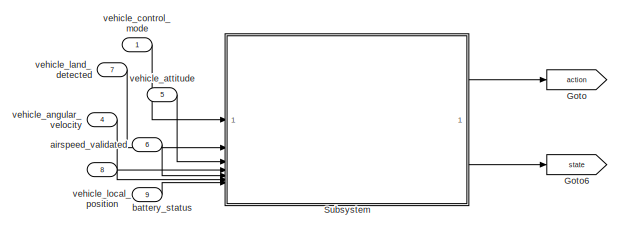
[diagram: root canvas - part 1/2, top center region]
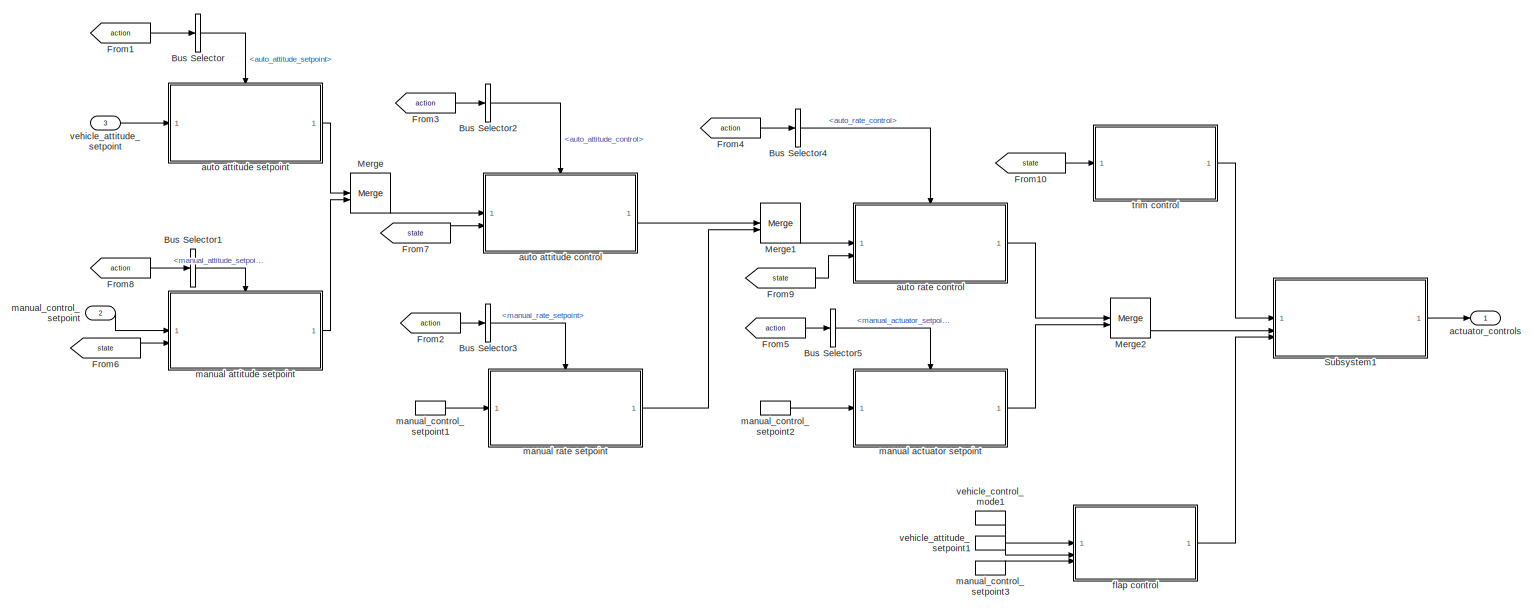
[diagram: root canvas - part 2/2, full width, middle band]
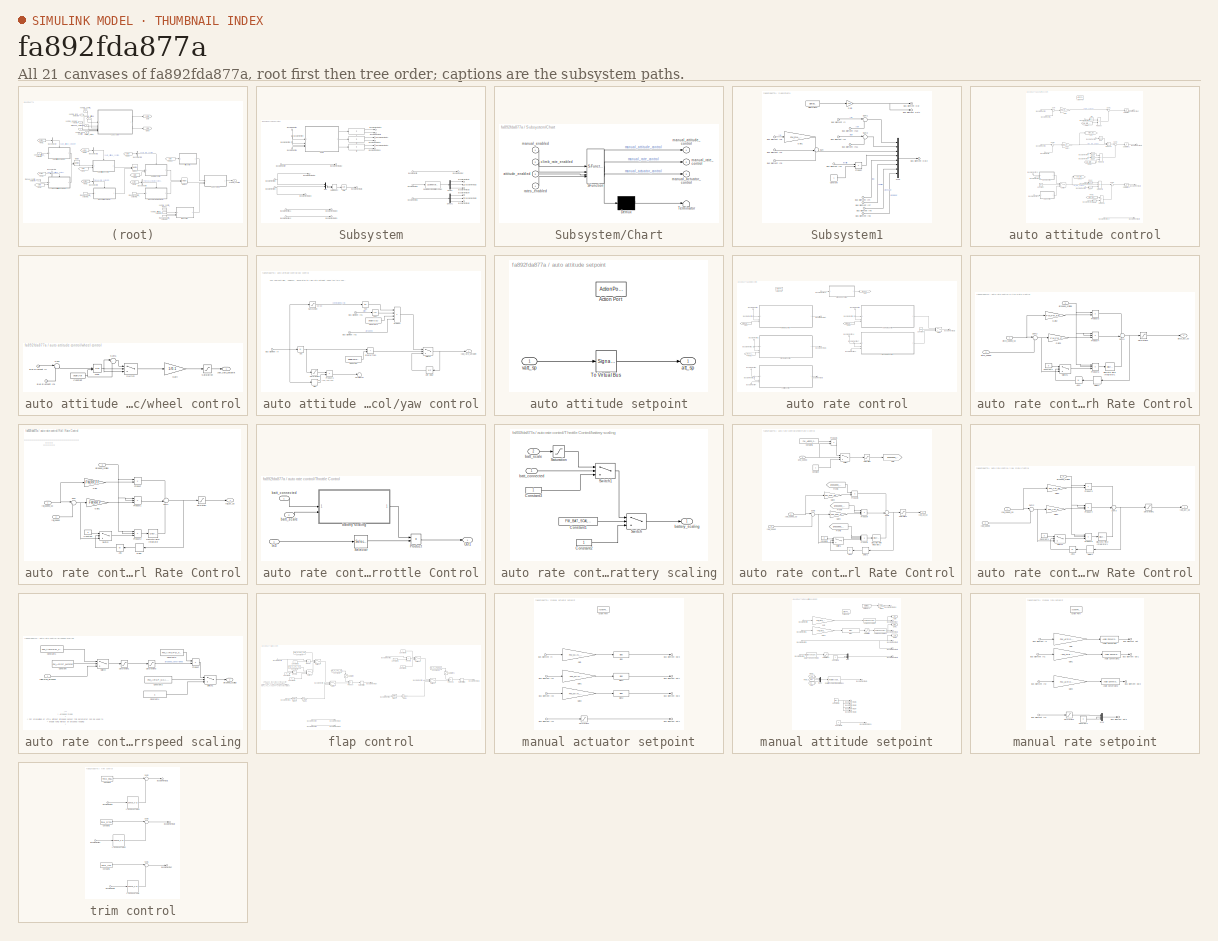
[diagram: thumbnail index - all 21 canvases of the model, root first then tree order]
MODEL slx_fa892fda877a
KIND model
CONFIG AbsTol = auto
CONFIG EnableMultiTasking = off
CONFIG FixedStep = 0.005
CONFIG MaxStep = auto
CONFIG MinStep = auto
CONFIG RelTol = 1e-3
CONFIG SampleTimeConstraint = Unconstrained
CONFIG SolverName = FixedStepAuto
CONFIG StartTime = 0.0
CONFIG StopTime = 10.0
BLOCK [BusSelector] Bus Selector
  OutputSignals = auto_attitude_setpoint
BLOCK [BusSelector] Bus Selector1
  OutputSignals = manual_attitude_setpoint
BLOCK [BusSelector] Bus Selector2
  OutputSignals = auto_attitude_control
BLOCK [BusSelector] Bus Selector3
  OutputSignals = manual_rate_setpoint
BLOCK [BusSelector] Bus Selector4
  OutputSignals = auto_rate_control
BLOCK [BusSelector] Bus Selector5
  OutputSignals = manual_actuator_setpoint
BLOCK [From] From1
  GotoTag = action
BLOCK [From] From10
  GotoTag = state
BLOCK [From] From2
  GotoTag = action
BLOCK [From] From3
  GotoTag = action
BLOCK [From] From4
  GotoTag = action
BLOCK [From] From5
  GotoTag = action
BLOCK [From] From6
  GotoTag = state
BLOCK [From] From7
  GotoTag = state
BLOCK [From] From8
  GotoTag = action
BLOCK [From] From9
  GotoTag = state
BLOCK [Goto] Goto
  GotoTag = action
BLOCK [Goto] Goto6
  GotoTag = state
BLOCK [Merge] Merge
BLOCK [Merge] Merge1
BLOCK [Merge] Merge2
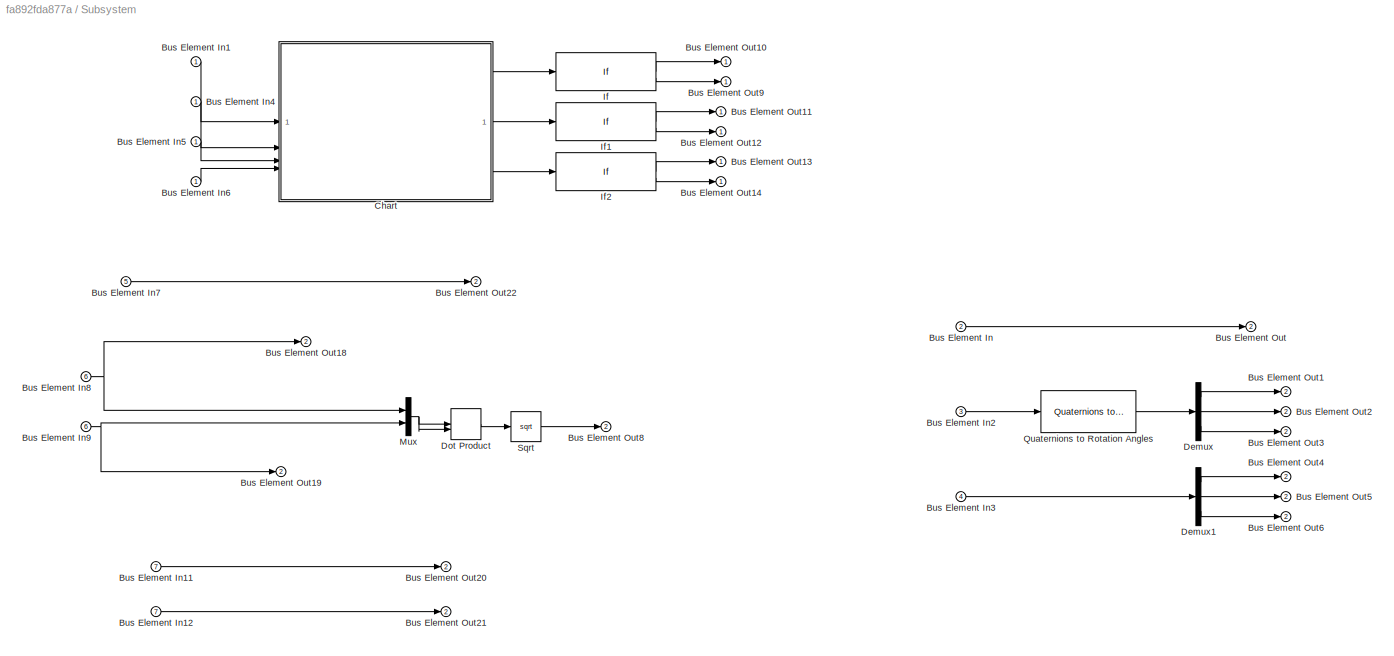
BLOCK [SubSystem] Subsystem
BLOCK [Inport] Subsystem/Bus Element In
  Port = 2
BLOCK [Inport] Subsystem/Bus Element In1
BLOCK [Inport] Subsystem/Bus Element In11
  Port = 7
BLOCK [Inport] Subsystem/Bus Element In12
  Port = 7
BLOCK [Inport] Subsystem/Bus Element In2
  Port = 3
BLOCK [Inport] Subsystem/Bus Element In3
  Port = 4
BLOCK [Inport] Subsystem/Bus Element In4
BLOCK [Inport] Subsystem/Bus Element In5
BLOCK [Inport] Subsystem/Bus Element In6
BLOCK [Inport] Subsystem/Bus Element In7
  Port = 5
BLOCK [Inport] Subsystem/Bus Element In8
  Port = 6
BLOCK [Inport] Subsystem/Bus Element In9
  Port = 6
BLOCK [Outport] Subsystem/Bus Element Out
  Port = 2
BLOCK [Outport] Subsystem/Bus Element Out1
  Port = 2
BLOCK [Outport] Subsystem/Bus Element Out10
BLOCK [Outport] Subsystem/Bus Element Out11
BLOCK [Outport] Subsystem/Bus Element Out12
BLOCK [Outport] Subsystem/Bus Element Out13
BLOCK [Outport] Subsystem/Bus Element Out14
BLOCK [Outport] Subsystem/Bus Element Out18
  Port = 2
BLOCK [Outport] Subsystem/Bus Element Out19
  Port = 2
BLOCK [Outport] Subsystem/Bus Element Out2
  Port = 2
BLOCK [Outport] Subsystem/Bus Element Out20
  Port = 2
BLOCK [Outport] Subsystem/Bus Element Out21
  Port = 2
BLOCK [Outport] Subsystem/Bus Element Out22
  Port = 2
BLOCK [Outport] Subsystem/Bus Element Out3
  Port = 2
BLOCK [Outport] Subsystem/Bus Element Out4
  Port = 2
BLOCK [Outport] Subsystem/Bus Element Out5
  Port = 2
BLOCK [Outport] Subsystem/Bus Element Out6
  Port = 2
BLOCK [Outport] Subsystem/Bus Element Out8
  Port = 2
BLOCK [Outport] Subsystem/Bus Element Out9
BLOCK [SubSystem] Subsystem/Chart
  ErrorFcn = Stateflow.Translate.translate
  PermitHierarchicalResolution = ExplicitOnly
  SFBlockType = Chart
  TreatAsAtomicUnit = on
BLOCK [Demux] Subsystem/Chart/ Demux 
  Outputs = 1
BLOCK [S-Function] Subsystem/Chart/ SFunction 
  EnableBusSupport = on
  FunctionName = sf_sfun
  PortCounts = [4 4]
  SFcnIsStateOwnerBlock = off
  SFunctionDeploymentMode = off
  Tag = Stateflow S-Function 3
BLOCK [Terminator] Subsystem/Chart/ Terminator 
BLOCK [Inport] Subsystem/Chart/attitude_enabled
  Port = 3
BLOCK [Inport] Subsystem/Chart/climb_rate_enabled
  Port = 2
BLOCK [Outport] Subsystem/Chart/manual_actuator_control
  Port = 3
BLOCK [Outport] Subsystem/Chart/manual_attitude_control
BLOCK [Inport] Subsystem/Chart/manual_enabled
BLOCK [Outport] Subsystem/Chart/manual_rate_control
  Port = 2
BLOCK [Inport] Subsystem/Chart/rates_enabled
  Port = 4
BLOCK [Demux] Subsystem/Demux
  Outputs = 3
BLOCK [Demux] Subsystem/Demux1
  Outputs = 3
BLOCK [DotProduct] Subsystem/Dot Product
  OutDataTypeStr = Inherit: Inherit via internal rule
BLOCK [If] Subsystem/If
  IfExpression = u1 > 0.5
BLOCK [If] Subsystem/If1
  IfExpression = u1 > 0.5
BLOCK [If] Subsystem/If2
  IfExpression = u1 > 0.5
BLOCK [Mux] Subsystem/Mux
  DisplayOption = bar
  Inputs = 2
BLOCK [Reference] Subsystem/Quaternions to Rotation Angles  REF=sharedtransform/Quaternions to Rotation Angles
  AttributesFormatString = Rotation Order: %<rotationOrder>
  LibrarySourceBlock = aerolibtransform2/Quaternions to Rotation Angles
  SourceBlock = sharedtransform/Quaternions to Rotation Angles
  SourceType = Quat2Ang
BLOCK [Sqrt] Subsystem/Sqrt
BLOCK [SubSystem] Subsystem1
BLOCK [Inport] Subsystem1/Bus Element In
  Port = 2
BLOCK [Inport] Subsystem1/Bus Element In1
  Port = 2
BLOCK [Inport] Subsystem1/Bus Element In10
BLOCK [Inport] Subsystem1/Bus Element In11
BLOCK [Inport] Subsystem1/Bus Element In2
  Port = 2
BLOCK [Inport] Subsystem1/Bus Element In3
  Port = 2
BLOCK [Inport] Subsystem1/Bus Element In4
  Port = 3
BLOCK [Inport] Subsystem1/Bus Element In5
  Port = 3
BLOCK [Inport] Subsystem1/Bus Element In6
  Port = 2
BLOCK [Inport] Subsystem1/Bus Element In7
  Port = 3
BLOCK [Inport] Subsystem1/Bus Element In8
  Port = 3
BLOCK [Inport] Subsystem1/Bus Element In9
BLOCK [Outport] Subsystem1/Bus Element Out
BLOCK [Outport] Subsystem1/Bus Element Out1
BLOCK [Outport] Subsystem1/Bus Element Out2
BLOCK [Constant] Subsystem1/Constant
  OutDataTypeStr = single
BLOCK [DigitalClock] Subsystem1/Digital Clock
  SampleTime = -1
BLOCK [Gain] Subsystem1/Gain
  Gain = 1e6
  OutDataTypeStr = uint64
BLOCK [Gain] Subsystem1/Gain1
  Gain = FW_RLL_TO_YAW_FF
  OutDataTypeStr = uint64
BLOCK [Mux] Subsystem1/Mux
  DisplayOption = bar
  Inputs = 8
BLOCK [Product] Subsystem1/Product
BLOCK [Sum] Subsystem1/Sum
  Inputs = 3
BLOCK [Sum] Subsystem1/Sum1
  Inputs = |++
BLOCK [Sum] Subsystem1/Sum2
  Inputs = |++
BLOCK [Outport] actuator_controls
  OutDataTypeStr = Bus: actuator_controls_s
BLOCK [Inport] airspeed_validated
  NameLocation = left
  OutDataTypeStr = Bus: airspeed_validated_s
  Port = 6
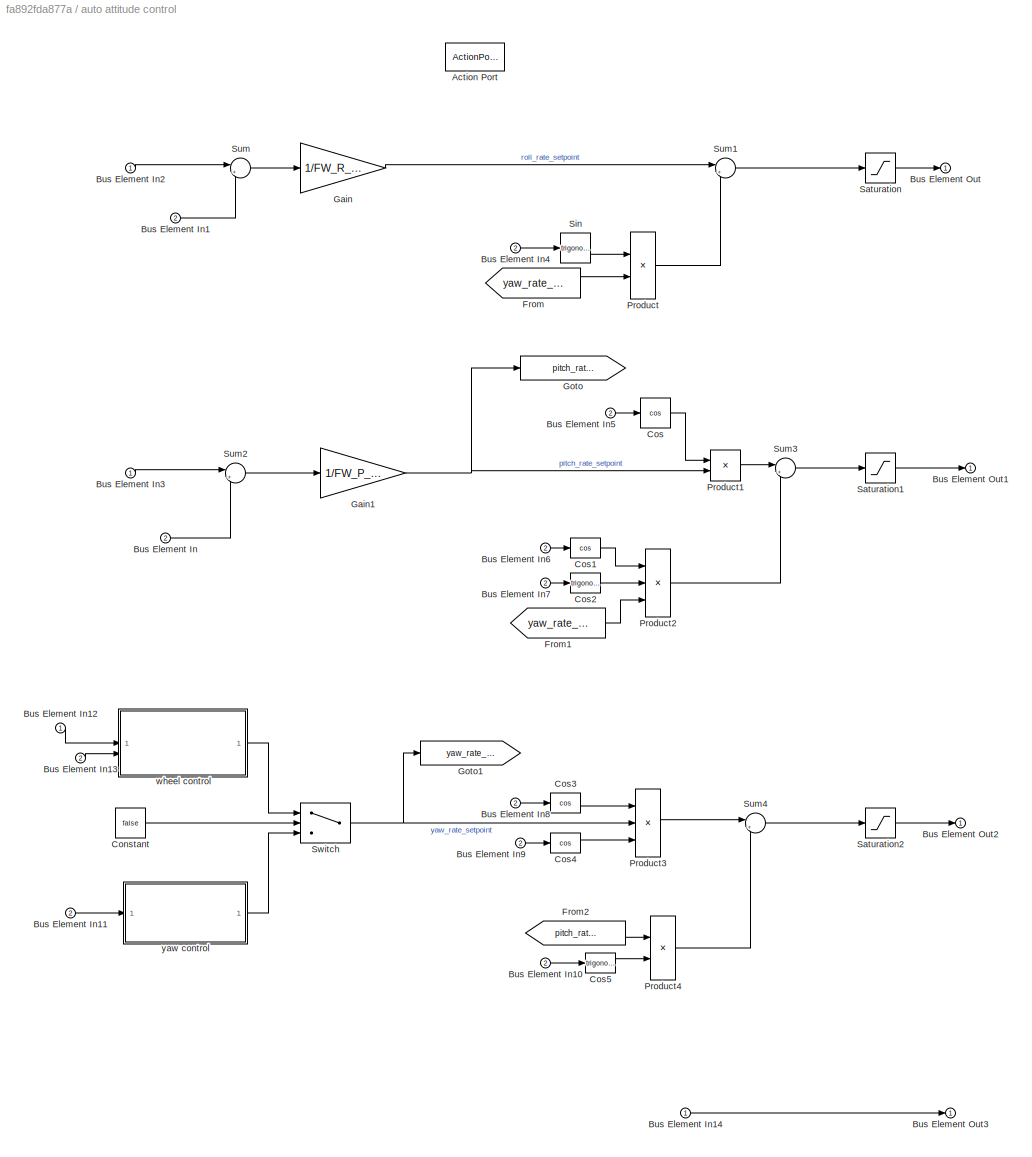
BLOCK [SubSystem] auto attitude control
BLOCK [ActionPort] auto attitude control/Action Port
  ActionPortLabel = else
BLOCK [Inport] auto attitude control/Bus Element In
  Port = 2
BLOCK [Inport] auto attitude control/Bus Element In1
  Port = 2
BLOCK [Inport] auto attitude control/Bus Element In10
  Port = 2
BLOCK [Inport] auto attitude control/Bus Element In11
  Port = 2
BLOCK [Inport] auto attitude control/Bus Element In12
BLOCK [Inport] auto attitude control/Bus Element In13
  Port = 2
BLOCK [Inport] auto attitude control/Bus Element In14
BLOCK [Inport] auto attitude control/Bus Element In2
BLOCK [Inport] auto attitude control/Bus Element In3
BLOCK [Inport] auto attitude control/Bus Element In4
  Port = 2
BLOCK [Inport] auto attitude control/Bus Element In5
  Port = 2
BLOCK [Inport] auto attitude control/Bus Element In6
  Port = 2
BLOCK [Inport] auto attitude control/Bus Element In7
  Port = 2
BLOCK [Inport] auto attitude control/Bus Element In8
  Port = 2
BLOCK [Inport] auto attitude control/Bus Element In9
  Port = 2
BLOCK [Outport] auto attitude control/Bus Element Out
BLOCK [Outport] auto attitude control/Bus Element Out1
BLOCK [Outport] auto attitude control/Bus Element Out2
BLOCK [Outport] auto attitude control/Bus Element Out3
BLOCK [Constant] auto attitude control/Constant
  Value = false
BLOCK [Trigonometry] auto attitude control/Cos
  Operator = cos
BLOCK [Trigonometry] auto attitude control/Cos1
  Operator = cos
BLOCK [Trigonometry] auto attitude control/Cos2
BLOCK [Trigonometry] auto attitude control/Cos3
  Operator = cos
BLOCK [Trigonometry] auto attitude control/Cos4
  Operator = cos
BLOCK [Trigonometry] auto attitude control/Cos5
BLOCK [From] auto attitude control/From
  GotoTag = yaw_rate_setpoint
BLOCK [From] auto attitude control/From1
  GotoTag = yaw_rate_setpoint
BLOCK [From] auto attitude control/From2
  GotoTag = pitch_rate_setpoint
BLOCK [Gain] auto attitude control/Gain
  Gain = 1/FW_R_TC
BLOCK [Gain] auto attitude control/Gain1
  Gain = 1/FW_P_TC
BLOCK [Goto] auto attitude control/Goto
  GotoTag = pitch_rate_setpoint
BLOCK [Goto] auto attitude control/Goto1
  GotoTag = yaw_rate_setpoint
BLOCK [Product] auto attitude control/Product
BLOCK [Product] auto attitude control/Product1
BLOCK [Product] auto attitude control/Product2
  Inputs = 3
BLOCK [Product] auto attitude control/Product3
  Inputs = 3
BLOCK [Product] auto attitude control/Product4
BLOCK [Saturate] auto attitude control/Saturation
  LowerLimit = -FW_R_RMAX
  UpperLimit = FW_R_RMAX
BLOCK [Saturate] auto attitude control/Saturation1
  LowerLimit = -FW_P_RMAX_NEG
  UpperLimit = FW_P_RMAX_POS
BLOCK [Saturate] auto attitude control/Saturation2
  LowerLimit = -FW_Y_RMAX
  UpperLimit = FW_Y_RMAX
BLOCK [Trigonometry] auto attitude control/Sin
BLOCK [Sum] auto attitude control/Sum
  Inputs = |+-
BLOCK [Sum] auto attitude control/Sum1
  Inputs = |+-
BLOCK [Sum] auto attitude control/Sum2
  Inputs = |+-
BLOCK [Sum] auto attitude control/Sum3
  Inputs = |++
BLOCK [Sum] auto attitude control/Sum4
  Inputs = |+-
BLOCK [Switch] auto attitude control/Switch
  Criteria = u2 > Threshold
  InputSameDT = off
  SaturateOnIntegerOverflow = off
BLOCK [SubSystem] auto attitude control/wheel control
BLOCK [Inport] auto attitude control/wheel control/Bus Element In
BLOCK [Inport] auto attitude control/wheel control/Bus Element In1
  Port = 2
BLOCK [Constant] auto attitude control/wheel control/Constant
  OutDataTypeStr = single
  Value = single(2*pi)
BLOCK [Gain] auto attitude control/wheel control/Gain
  Gain = 1/0.1
BLOCK [Math] auto attitude control/wheel control/Mod
  Operator = mod
BLOCK [Saturate] auto attitude control/wheel control/Saturation
  LowerLimit = -FW_W_RMAX
  UpperLimit = FW_W_RMAX
BLOCK [Sum] auto attitude control/wheel control/Sum
  Inputs = |+-
BLOCK [Sum] auto attitude control/wheel control/Sum1
  Inputs = |+-
BLOCK [Switch] auto attitude control/wheel control/Switch
  Criteria = u2 > Threshold
  InputSameDT = off
  SaturateOnIntegerOverflow = off
  Threshold = single(pi)
BLOCK [Outport] auto attitude control/wheel control/yaw_rate_setpoint
BLOCK [SubSystem] auto attitude control/yaw control
BLOCK [Abs] auto attitude control/yaw control/Abs
  SaturateOnIntegerOverflow = off
BLOCK [Inport] auto attitude control/yaw control/Bus Element In
BLOCK [Inport] auto attitude control/yaw control/Bus Element In1
BLOCK [Inport] auto attitude control/yaw control/Bus Element In2
BLOCK [Constant] auto attitude control/yaw control/Constant
  OutDataTypeStr = single
  Value = single(90*pi/180)
BLOCK [Constant] auto attitude control/yaw control/Constant1
  OutDataTypeStr = single
  Value = single(9.81)
BLOCK [RelationalOperator] auto attitude control/yaw control/GreaterThan
  InputSameDT = off
  Operator = <
  OutDataTypeStr = boolean
  RndMeth = Simplest
BLOCK [Product] auto attitude control/yaw control/Product
  Inputs = ***/
BLOCK [Product] auto attitude control/yaw control/Product1
BLOCK [Saturate] auto attitude control/yaw control/Saturation
  LowerLimit = single(-80*pi/180)
  UpperLimit = single(80*pi/180)
BLOCK [Saturate] auto attitude control/yaw control/Saturation1
  LowerLimit = single(100*pi/180)
  UpperLimit = single(180*pi/180)
BLOCK [Signum] auto attitude control/yaw control/Sign
BLOCK [Switch] auto attitude control/yaw control/Switch
  Criteria = u2 > Threshold
  InputSameDT = off
  SaturateOnIntegerOverflow = off
BLOCK [Trigonometry] auto attitude control/yaw control/Tan
  Operator = tan
BLOCK [Trigonometry] auto attitude control/yaw control/Tan1
  Operator = cos
BLOCK [Terminator] auto attitude control/yaw control/Terminator
BLOCK [UnitDelay] auto attitude control/yaw control/Unit Delay
  HasFrameUpgradeWarning = on
  NameLocation = top
  SampleTime = -1
BLOCK [Outport] auto attitude control/yaw control/yaw_rate_setpoint
BLOCK [SubSystem] auto attitude setpoint
BLOCK [ActionPort] auto attitude setpoint/Action Port
  ActionPortLabel = else
BLOCK [SignalConversion] auto attitude setpoint/To Virtual Bus
  Commented = through
  ConversionOutput = Virtual bus
  OverrideOpt = off
BLOCK [Outport] auto attitude setpoint/att_sp
BLOCK [Inport] auto attitude setpoint/vatt_sp
BLOCK [SubSystem] auto rate control
BLOCK [ActionPort] auto rate control/Action Port
  ActionPortLabel = else
BLOCK [Outport] auto rate control/Bus Element Out
BLOCK [Outport] auto rate control/Bus Element Out1
BLOCK [Outport] auto rate control/Bus Element Out2
BLOCK [Outport] auto rate control/Bus Element Out3
BLOCK [Inport] auto rate control/BusElementIn
  Port = 2
BLOCK [Inport] auto rate control/BusElementIn1
BLOCK [Inport] auto rate control/BusElementIn14
  Port = 2
BLOCK [Inport] auto rate control/BusElementIn15
  Port = 2
BLOCK [Inport] auto rate control/BusElementIn16
BLOCK [Inport] auto rate control/BusElementIn17
  Port = 2
BLOCK [Inport] auto rate control/BusElementIn18
  Port = 2
BLOCK [Inport] auto rate control/BusElementIn2
BLOCK [Inport] auto rate control/BusElementIn3
  Port = 2
BLOCK [Inport] auto rate control/BusElementIn4
BLOCK [Inport] auto rate control/BusElementIn5
BLOCK [Inport] auto rate control/BusElementIn6
  Port = 2
BLOCK [Inport] auto rate control/BusElementIn9
  Port = 2
BLOCK [Constant] auto rate control/Constant
  Value = false
BLOCK [From] auto rate control/From
  GotoTag = airspeed_scaling
BLOCK [From] auto rate control/From1
  GotoTag = airspeed_scaling
BLOCK [From] auto rate control/From2
  GotoTag = airspeed_scaling
BLOCK [Goto] auto rate control/Goto
  GotoTag = airspeed_scaling
BLOCK [SubSystem] auto rate control/Pitch Rate Control
BLOCK [Abs] auto rate control/Pitch Rate Control/Abs1
  SaturateOnIntegerOverflow = off
BLOCK [Constant] auto rate control/Pitch Rate Control/Constant1
  OutDataTypeStr = single
  Value = 0
BLOCK [Delay] auto rate control/Pitch Rate Control/Delay1
  DelayLength = 1
  InputPortMap = u0
BLOCK [DiscreteIntegrator] auto rate control/Pitch Rate Control/Discrete-Time Integrator1
  ICPrevOutput = DiscIntNeverNeededParam
  ICPrevScaledInput = DiscIntNeverNeededParam
  InitialConditionSetting = Auto
  LimitOutput = on
  LowerSaturationLimit = -FW_PR_IMAX
  SampleTime = -1
  UpperSaturationLimit = FW_PR_IMAX
  gainval = FW_PR_I
BLOCK [Gain] auto rate control/Pitch Rate Control/Gain2
  Gain = FW_PR_FF
BLOCK [Gain] auto rate control/Pitch Rate Control/Gain3
  Gain = FW_PR_P
BLOCK [Product] auto rate control/Pitch Rate Control/Product3
BLOCK [Product] auto rate control/Pitch Rate Control/Product4
  Inputs = 3
BLOCK [Product] auto rate control/Pitch Rate Control/Product5
  Inputs = 3
BLOCK [Saturate] auto rate control/Pitch Rate Control/Saturation1
  LowerLimit = -1
  UpperLimit = 1
BLOCK [Sum] auto rate control/Pitch Rate Control/Sum2
  Inputs = |+-
BLOCK [Sum] auto rate control/Pitch Rate Control/Sum3
  Inputs = 3
BLOCK [Switch] auto rate control/Pitch Rate Control/Switch1
  Criteria = u2 > Threshold
  InputSameDT = off
  SaturateOnIntegerOverflow = off
  Threshold = 1
BLOCK [Inport] auto rate control/Pitch Rate Control/airspeed_scaling
  Port = 3
BLOCK [Outport] auto rate control/Pitch Rate Control/pitch_act_sp
BLOCK [Inport] auto rate control/Pitch Rate Control/pitch_speed
  Port = 2
BLOCK [Inport] auto rate control/Pitch Rate Control/pitch_speed_sp
BLOCK [SubSystem] auto rate control/Roll Rate Control
BLOCK [Abs] auto rate control/Roll Rate Control/Abs
  SaturateOnIntegerOverflow = off
BLOCK [Constant] auto rate control/Roll Rate Control/Constant
  OutDataTypeStr = single
  Value = 0
BLOCK [Delay] auto rate control/Roll Rate Control/Delay
  DelayLength = 1
  InputPortMap = u0
BLOCK [DiscreteIntegrator] auto rate control/Roll Rate Control/Discrete-Time Integrator
  ICPrevOutput = DiscIntNeverNeededParam
  ICPrevScaledInput = DiscIntNeverNeededParam
  InitialConditionSetting = Auto
  LimitOutput = on
  LowerSaturationLimit = -FW_RR_IMAX
  SampleTime = -1
  UpperSaturationLimit = FW_RR_IMAX
  gainval = FW_RR_I
BLOCK [Gain] auto rate control/Roll Rate Control/Gain
  Gain = FW_RR_FF
BLOCK [Gain] auto rate control/Roll Rate Control/Gain1
  Gain = FW_RR_P
BLOCK [Product] auto rate control/Roll Rate Control/Product
BLOCK [Product] auto rate control/Roll Rate Control/Product1
  Inputs = 3
BLOCK [Product] auto rate control/Roll Rate Control/Product2
  Inputs = 3
BLOCK [Saturate] auto rate control/Roll Rate Control/Saturation
  LowerLimit = -1
  UpperLimit = 1
BLOCK [Sum] auto rate control/Roll Rate Control/Sum
  Inputs = |+-
BLOCK [Sum] auto rate control/Roll Rate Control/Sum1
  Inputs = 3
BLOCK [Switch] auto rate control/Roll Rate Control/Switch
  Criteria = u2 > Threshold
  InputSameDT = off
  SaturateOnIntegerOverflow = off
  Threshold = 1
BLOCK [Inport] auto rate control/Roll Rate Control/airspeed_scaling
  Port = 3
BLOCK [Outport] auto rate control/Roll Rate Control/roll_act_sp
BLOCK [Inport] auto rate control/Roll Rate Control/roll_speed
  Port = 2
BLOCK [Inport] auto rate control/Roll Rate Control/roll_speed_sp
BLOCK [Switch] auto rate control/Switch
  Criteria = u2 > Threshold
  InputSameDT = off
  SaturateOnIntegerOverflow = off
BLOCK [SubSystem] auto rate control/Throttle Control
BLOCK [Inport] auto rate control/Throttle Control/In3
  Port = 3
BLOCK [Outport] auto rate control/Throttle Control/Out1
BLOCK [Product] auto rate control/Throttle Control/Product
BLOCK [Selector] auto rate control/Throttle Control/Selector
  IndexOptions = Index vector (dialog)
  Indices = 1
  InputPortWidth = 3
  OutputSizes = 1
BLOCK [Inport] auto rate control/Throttle Control/batt_connected
BLOCK [Inport] auto rate control/Throttle Control/batt_scale
  Port = 2
BLOCK [SubSystem] auto rate control/Throttle Control/battery scaling
BLOCK [Constant] auto rate control/Throttle Control/battery scaling/Constant1
  Value = FW_BAT_SCALE_EN
BLOCK [Constant] auto rate control/Throttle Control/battery scaling/Constant2
  OutDataTypeStr = single
BLOCK [Constant] auto rate control/Throttle Control/battery scaling/Constant3
  OutDataTypeStr = single
BLOCK [Saturate] auto rate control/Throttle Control/battery scaling/Saturation
  LowerLimit = 0
  UpperLimit = inf
BLOCK [Switch] auto rate control/Throttle Control/battery scaling/Switch
  Criteria = u2 > Threshold
  InputSameDT = off
  SaturateOnIntegerOverflow = off
BLOCK [Switch] auto rate control/Throttle Control/battery scaling/Switch1
  Criteria = u2 > Threshold
  InputSameDT = off
  SaturateOnIntegerOverflow = off
  Threshold = 0.5
BLOCK [Inport] auto rate control/Throttle Control/battery scaling/batt_connected
BLOCK [Inport] auto rate control/Throttle Control/battery scaling/batt_scale
  Port = 2
BLOCK [Outport] auto rate control/Throttle Control/battery scaling/battery_scaling
BLOCK [SubSystem] auto rate control/Wheel Rate Control
BLOCK [Abs] auto rate control/Wheel Rate Control/Abs1
  SaturateOnIntegerOverflow = off
BLOCK [Constant] auto rate control/Wheel Rate Control/Constant
  OutDataTypeStr = single
BLOCK [Constant] auto rate control/Wheel Rate Control/Constant1
  OutDataTypeStr = single
  Value = 0
BLOCK [Constant] auto rate control/Wheel Rate Control/Constant5
  Value = FW_AIRSPD_STALL
BLOCK [Delay] auto rate control/Wheel Rate Control/Delay1
  DelayLength = 1
  InputPortMap = u0
BLOCK [DiscreteIntegrator] auto rate control/Wheel Rate Control/Discrete-Time Integrator1
  ICPrevOutput = DiscIntNeverNeededParam
  ICPrevScaledInput = DiscIntNeverNeededParam
  InitialConditionSetting = Auto
  LimitOutput = on
  LowerSaturationLimit = -FW_WR_IMAX
  SampleTime = -1
  UpperSaturationLimit = FW_WR_IMAX
  gainval = FW_WR_I
BLOCK [From] auto rate control/Wheel Rate Control/From3
  GotoTag = gndspeed_scaling
BLOCK [From] auto rate control/Wheel Rate Control/From4
  GotoTag = gndspeed_scaling
BLOCK [From] auto rate control/Wheel Rate Control/From5
  GotoTag = gndspeed_scaling
BLOCK [Gain] auto rate control/Wheel Rate Control/Gain2
  Gain = FW_WR_FF
BLOCK [Gain] auto rate control/Wheel Rate Control/Gain3
  Gain = FW_WR_P
BLOCK [Goto] auto rate control/Wheel Rate Control/Goto
  GotoTag = gndspeed_scaling
BLOCK [Product] auto rate control/Wheel Rate Control/Product1
  Inputs = */
BLOCK [Product] auto rate control/Wheel Rate Control/Product3
BLOCK [Product] auto rate control/Wheel Rate Control/Product4
  Inputs = 3
BLOCK [Product] auto rate control/Wheel Rate Control/Product5
  Inputs = 4
BLOCK [Saturate] auto rate control/Wheel Rate Control/Saturation
  LowerLimit = 0
  UpperLimit = 1
BLOCK [Saturate] auto rate control/Wheel Rate Control/Saturation1
  LowerLimit = -1
  UpperLimit = 1
BLOCK [Sum] auto rate control/Wheel Rate Control/Sum2
  Inputs = |+-
BLOCK [Sum] auto rate control/Wheel Rate Control/Sum3
  Inputs = 3
BLOCK [Switch] auto rate control/Wheel Rate Control/Switch
  Criteria = u2 > Threshold
  InputSameDT = off
  SaturateOnIntegerOverflow = off
BLOCK [Switch] auto rate control/Wheel Rate Control/Switch1
  Criteria = u2 > Threshold
  InputSameDT = off
  SaturateOnIntegerOverflow = off
  Threshold = 1
BLOCK [Inport] auto rate control/Wheel Rate Control/gnd_speed
  Port = 3
BLOCK [Outport] auto rate control/Wheel Rate Control/yaw_act_sp
BLOCK [Inport] auto rate control/Wheel Rate Control/yaw_speed
  Port = 2
BLOCK [Inport] auto rate control/Wheel Rate Control/yaw_speed_sp
BLOCK [SubSystem] auto rate control/Yaw Rate Control
BLOCK [Abs] auto rate control/Yaw Rate Control/Abs1
  SaturateOnIntegerOverflow = off
BLOCK [Constant] auto rate control/Yaw Rate Control/Constant1
  OutDataTypeStr = single
  Value = 0
BLOCK [Delay] auto rate control/Yaw Rate Control/Delay1
  DelayLength = 1
  InputPortMap = u0
BLOCK [DiscreteIntegrator] auto rate control/Yaw Rate Control/Discrete-Time Integrator1
  ICPrevOutput = DiscIntNeverNeededParam
  ICPrevScaledInput = DiscIntNeverNeededParam
  InitialConditionSetting = Auto
  LimitOutput = on
  LowerSaturationLimit = -FW_YR_IMAX
  SampleTime = -1
  UpperSaturationLimit = FW_YR_IMAX
  gainval = FW_YR_I
BLOCK [Gain] auto rate control/Yaw Rate Control/Gain2
  Gain = FW_YR_FF
BLOCK [Gain] auto rate control/Yaw Rate Control/Gain3
  Gain = FW_YR_P
BLOCK [Product] auto rate control/Yaw Rate Control/Product3
BLOCK [Product] auto rate control/Yaw Rate Control/Product4
  Inputs = 3
BLOCK [Product] auto rate control/Yaw Rate Control/Product5
  Inputs = 3
BLOCK [Saturate] auto rate control/Yaw Rate Control/Saturation1
  LowerLimit = -1
  UpperLimit = 1
BLOCK [Sum] auto rate control/Yaw Rate Control/Sum2
  Inputs = |+-
BLOCK [Sum] auto rate control/Yaw Rate Control/Sum3
  Inputs = 3
BLOCK [Switch] auto rate control/Yaw Rate Control/Switch1
  Criteria = u2 > Threshold
  InputSameDT = off
  SaturateOnIntegerOverflow = off
  Threshold = 1
BLOCK [Inport] auto rate control/Yaw Rate Control/airspeed_scaling
  Port = 3
BLOCK [Outport] auto rate control/Yaw Rate Control/yaw_act_sp
BLOCK [Inport] auto rate control/Yaw Rate Control/yaw_speed
  Port = 2
BLOCK [Inport] auto rate control/Yaw Rate Control/yaw_speed_sp
BLOCK [SubSystem] auto rate control/airspeed scaling
BLOCK [Constant] auto rate control/airspeed scaling/Constant
  Value = FW_ARSP_MODE
BLOCK [Constant] auto rate control/airspeed scaling/Constant1
  Value = FW_AIRSPD_TRIM
BLOCK [Constant] auto rate control/airspeed scaling/Constant2
  Value = FW_ARSP_SCALE_EN
BLOCK [Constant] auto rate control/airspeed scaling/Constant3
  Value = FW_AIRSPD_TRIM
BLOCK [Constant] auto rate control/airspeed scaling/Constant4
  OutDataTypeStr = single
BLOCK [Product] auto rate control/airspeed scaling/Product
  Inputs = */
BLOCK [Saturate] auto rate control/airspeed scaling/Saturation1
  LowerLimit = FW_AIRSPD_STALL
  UpperLimit = FW_AIRSPD_MAX
BLOCK [Saturate] auto rate control/airspeed scaling/Saturation3
  LowerLimit = single(0.1)
  UpperLimit = 1000
BLOCK [Switch] auto rate control/airspeed scaling/Switch
  Criteria = u2 > Threshold
  InputSameDT = off
  SaturateOnIntegerOverflow = off
BLOCK [Switch] auto rate control/airspeed scaling/Switch1
  Criteria = u2 > Threshold
  InputSameDT = off
  SaturateOnIntegerOverflow = off
BLOCK [Outport] auto rate control/airspeed scaling/airspeed_scaling
BLOCK [Inport] auto rate control/airspeed scaling/calibrated_airspeed
BLOCK [Inport] battery_status
  NameLocation = left
  OutDataTypeStr = Bus: battery_status_s
  Port = 9
BLOCK [SubSystem] flap control
BLOCK [Bias] flap control/Bias1
  Bias = 1
  SaturateOnIntegerOverflow = off
BLOCK [Bias] flap control/Bias3
  Bias = 1
  SaturateOnIntegerOverflow = off
BLOCK [Inport] flap control/Bus Element In
  Port = 2
BLOCK [Inport] flap control/Bus Element In1
  Port = 3
BLOCK [Inport] flap control/Bus Element In2
  Port = 3
BLOCK [Inport] flap control/Bus Element In3
  Port = 2
BLOCK [Inport] flap control/Bus Element In4
  Port = 3
BLOCK [Inport] flap control/Bus Element In5
  Port = 3
BLOCK [Outport] flap control/Bus Element Out
BLOCK [Outport] flap control/Bus Element Out1
BLOCK [Outport] flap control/Bus Element Out2
BLOCK [Outport] flap control/Bus Element Out3
BLOCK [Inport] flap control/BusElementIn
BLOCK [Inport] flap control/BusElementIn1
BLOCK [Constant] flap control/Constant1
  OutDataTypeStr = single
BLOCK [Constant] flap control/Constant10
  Value = FW_FLAPERON_SCL
BLOCK [Constant] flap control/Constant2
  OutDataTypeStr = single
  Value = 0
BLOCK [Constant] flap control/Constant3
  OutDataTypeStr = single
BLOCK [Constant] flap control/Constant4
  OutDataTypeStr = single
  Value = 0
BLOCK [Constant] flap control/Constant5
  OutDataTypeStr = single
  Value = 2
BLOCK [Constant] flap control/Constant6
  Value = FW_FLAPS_SCL
BLOCK [Constant] flap control/Constant7
  Value = FW_FLAPS_LND_SCL
BLOCK [Constant] flap control/Constant8
  Value = FW_FLAPS_TO_SCL
BLOCK [Constant] flap control/Constant9
  OutDataTypeStr = single
BLOCK [RelationalOperator] flap control/Equal
  InputSameDT = off
  Operator = ==
  OutDataTypeStr = boolean
  RndMeth = Simplest
BLOCK [RelationalOperator] flap control/Equal1
  InputSameDT = off
  Operator = ==
  OutDataTypeStr = boolean
  RndMeth = Simplest
BLOCK [RelationalOperator] flap control/Equal2
  InputSameDT = off
  Operator = ==
  OutDataTypeStr = boolean
  RndMeth = Simplest
BLOCK [Gain] flap control/Gain1
  Gain = 0.5
BLOCK [Gain] flap control/Gain3
  Gain = 0.5
BLOCK [Product] flap control/Product
BLOCK [Product] flap control/Product1
BLOCK [RateLimiter] flap control/Rate Limiter
  SampleTimeMode = inherited
BLOCK [RateLimiter] flap control/Rate Limiter1
  SampleTimeMode = inherited
BLOCK [Saturate] flap control/Saturation
  LowerLimit = 0
  NameLocation = left
  UpperLimit = 1
BLOCK [Saturate] flap control/Saturation1
  LowerLimit = 0
  NameLocation = left
  UpperLimit = 1
BLOCK [Switch] flap control/Switch
  Criteria = u2 > Threshold
  InputSameDT = off
  SaturateOnIntegerOverflow = off
BLOCK [Switch] flap control/Switch1
  Criteria = u2 > Threshold
  InputSameDT = off
  SaturateOnIntegerOverflow = off
BLOCK [Switch] flap control/Switch2
  Criteria = u2 > Threshold
  InputSameDT = off
  SaturateOnIntegerOverflow = off
BLOCK [Switch] flap control/Switch3
  Criteria = u2 > Threshold
  InputSameDT = off
  SaturateOnIntegerOverflow = off
BLOCK [Switch] flap control/Switch4
  Criteria = u2 > Threshold
  InputSameDT = off
  SaturateOnIntegerOverflow = off
BLOCK [SubSystem] manual actuator setpoint
BLOCK [ActionPort] manual actuator setpoint/Action Port
  ActionPortLabel = if(u1 > 0.5)
BLOCK [Bias] manual actuator setpoint/Bias
  Bias = TRIM_ROLL
  SaturateOnIntegerOverflow = off
BLOCK [Bias] manual actuator setpoint/Bias1
  Bias = TRIM_PITCH
  SaturateOnIntegerOverflow = off
BLOCK [Bias] manual actuator setpoint/Bias2
  Bias = TRIM_YAW
  SaturateOnIntegerOverflow = off
BLOCK [Inport] manual actuator setpoint/Bus Element In
BLOCK [Inport] manual actuator setpoint/Bus Element In1
BLOCK [Inport] manual actuator setpoint/Bus Element In2
BLOCK [Inport] manual actuator setpoint/Bus Element In4
BLOCK [Outport] manual actuator setpoint/Bus Element Out1
BLOCK [Outport] manual actuator setpoint/Bus Element Out2
BLOCK [Outport] manual actuator setpoint/Bus Element Out3
BLOCK [Outport] manual actuator setpoint/Bus Element Out4
BLOCK [Gain] manual actuator setpoint/Gain
  Gain = FW_MAN_R_SC
BLOCK [Gain] manual actuator setpoint/Gain1
  Gain = -FW_MAN_P_SC
BLOCK [Gain] manual actuator setpoint/Gain2
  Gain = FW_MAN_Y_SC
BLOCK [Saturate] manual actuator setpoint/Saturation1
  LowerLimit = 0
  UpperLimit = 1
BLOCK [SubSystem] manual attitude setpoint
BLOCK [ActionPort] manual attitude setpoint/Action Port
  ActionPortLabel = if(u1 > 0.5)
BLOCK [Reference] manual attitude setpoint/Angle Conversion  REF=aerolibconvert2/Angle Conversion
  SourceBlock = aerolibconvert2/Angle Conversion
  SourceType = Angle Conversion
BLOCK [Reference] manual attitude setpoint/Angle Conversion1  REF=aerolibconvert2/Angle Conversion
  SourceBlock = aerolibconvert2/Angle Conversion
  SourceType = Angle Conversion
BLOCK [Bias] manual attitude setpoint/Bias
  Bias = FW_PSP_OFF
  SaturateOnIntegerOverflow = off
BLOCK [Inport] manual attitude setpoint/Bus Element In
BLOCK [Inport] manual attitude setpoint/Bus Element In1
BLOCK [Inport] manual attitude setpoint/Bus Element In2
BLOCK [Inport] manual attitude setpoint/Bus Element In3
  Port = 2
BLOCK [Outport] manual attitude setpoint/Bus Element Out
BLOCK [Outport] manual attitude setpoint/Bus Element Out1
BLOCK [Outport] manual attitude setpoint/Bus Element Out10
BLOCK [Outport] manual attitude setpoint/Bus Element Out11
BLOCK [Outport] manual attitude setpoint/Bus Element Out2
BLOCK [Outport] manual attitude setpoint/Bus Element Out3
BLOCK [Outport] manual attitude setpoint/Bus Element Out4
BLOCK [Outport] manual attitude setpoint/Bus Element Out5
BLOCK [Outport] manual attitude setpoint/Bus Element Out6
BLOCK [Outport] manual attitude setpoint/Bus Element Out7
BLOCK [Outport] manual attitude setpoint/Bus Element Out8
BLOCK [Outport] manual attitude setpoint/Bus Element Out9
BLOCK [Constant] manual attitude setpoint/Constant1
  OutDataTypeStr = single
  Value = 0
BLOCK [Constant] manual attitude setpoint/Constant2
  Value = false
BLOCK [Constant] manual attitude setpoint/Constant3
  OutDataTypeStr = uint8
  Value = 0
BLOCK [DataTypeConversion] manual attitude setpoint/Data Type Conversion
  Commented = through
  OutDataTypeStr = double
  RndMeth = Floor
  SaturateOnIntegerOverflow = off
BLOCK [DigitalClock] manual attitude setpoint/Digital Clock
  SampleTime = -1
BLOCK [From] manual attitude setpoint/From
  GotoTag = roll
BLOCK [From] manual attitude setpoint/From1
  GotoTag = pitch
BLOCK [From] manual attitude setpoint/From2
  GotoTag = yaw
BLOCK [Gain] manual attitude setpoint/Gain
  Gain = FW_MAN_R_MAX
BLOCK [Gain] manual attitude setpoint/Gain1
  Gain = -FW_MAN_P_MAX
BLOCK [Gain] manual attitude setpoint/Gain2
  Gain = 1e6
  OutDataTypeStr = uint64
  ParamDataTypeStr = uint64
BLOCK [Goto] manual attitude setpoint/Goto
  GotoTag = roll
BLOCK [Goto] manual attitude setpoint/Goto1
  GotoTag = pitch
BLOCK [Goto] manual attitude setpoint/Goto2
  GotoTag = yaw
BLOCK [Mux] manual attitude setpoint/Mux
  DisplayOption = bar
  Inputs = 3
BLOCK [Mux] manual attitude setpoint/Mux1
  DisplayOption = bar
  Inputs = 3
BLOCK [Reference] manual attitude setpoint/Rotation Angles to Quaternions  REF=sharedtransform/Rotation Angles to Quaternions
  AttributesFormatString = Rotation Order: %<rotationOrder>
  LibrarySourceBlock = aerolibtransform2/Rotation Angles to Quaternions
  SourceBlock = sharedtransform/Rotation Angles to Quaternions
  SourceType = Ang2Quat
BLOCK [Saturate] manual attitude setpoint/Saturation
  LowerLimit = -FW_MAN_P_MAX
  UpperLimit = FW_MAN_P_MAX
BLOCK [Saturate] manual attitude setpoint/Saturation1
  LowerLimit = 0
  UpperLimit = 1
BLOCK [SubSystem] manual rate setpoint
BLOCK [ActionPort] manual rate setpoint/Action Port
  ActionPortLabel = if(u1 > 0.5)
BLOCK [Reference] manual rate setpoint/Angle Conversion  REF=aerolibconvert2/Angle Conversion
  SourceBlock = aerolibconvert2/Angle Conversion
  SourceType = Angle Conversion
BLOCK [Reference] manual rate setpoint/Angle Conversion1  REF=aerolibconvert2/Angle Conversion
  SourceBlock = aerolibconvert2/Angle Conversion
  SourceType = Angle Conversion
BLOCK [Reference] manual rate setpoint/Angle Conversion2  REF=aerolibconvert2/Angle Conversion
  SourceBlock = aerolibconvert2/Angle Conversion
  SourceType = Angle Conversion
BLOCK [Inport] manual rate setpoint/Bus Element In
BLOCK [Inport] manual rate setpoint/Bus Element In1
BLOCK [Inport] manual rate setpoint/Bus Element In2
BLOCK [Inport] manual rate setpoint/Bus Element In4
BLOCK [Outport] manual rate setpoint/Bus Element Out
BLOCK [Outport] manual rate setpoint/Bus Element Out1
BLOCK [Outport] manual rate setpoint/Bus Element Out2
BLOCK [Outport] manual rate setpoint/Bus Element Out3
BLOCK [Constant] manual rate setpoint/Constant1
  OutDataTypeStr = single
  Value = 0
BLOCK [Gain] manual rate setpoint/Gain
  Gain = FW_ACRO_X_MAX
BLOCK [Gain] manual rate setpoint/Gain1
  Gain = -FW_ACRO_Y_MAX
BLOCK [Gain] manual rate setpoint/Gain2
  Gain = FW_ACRO_Z_MAX
BLOCK [Mux] manual rate setpoint/Mux
  DisplayOption = bar
  Inputs = 3
BLOCK [Saturate] manual rate setpoint/Saturation1
  LowerLimit = 0
  UpperLimit = 1
BLOCK [Inport] manual_control_setpoint
  OutDataTypeStr = Bus: manual_control_setpoint_s
  Port = 2
BLOCK [InportShadow] manual_control_setpoint1
  OutDataTypeStr = Bus: manual_control_setpoint_s
  Port = 2
BLOCK [InportShadow] manual_control_setpoint2
  OutDataTypeStr = Bus: manual_control_setpoint_s
  Port = 2
BLOCK [InportShadow] manual_control_setpoint3
  NameLocation = left
  OutDataTypeStr = Bus: manual_control_setpoint_s
  Port = 2
BLOCK [SubSystem] trim control
BLOCK [Lookup_n-D] trim control/1-D Lookup Table
  BeginIndexSearchUsingPreviousIndexResult = on
  BreakpointsForDimension1 = [FW_AIRSPD_STALL, FW_AIRSPD_TRIM, FW_AIRSPD_MAX]
  ExtrapMethod = Clip
  IndexSearchMethod = Linear search
  InputPortMap = u0
  InternalRulePriority = Speed
  NumberOfTableDimensions = 1
  RndMeth = Simplest
  Table = [FW_DTRIM_Y_VMIN, 0, FW_DTRIM_Y_VMAX]
BLOCK [Lookup_n-D] trim control/1-D Lookup Table1
  BeginIndexSearchUsingPreviousIndexResult = on
  BreakpointsForDimension1 = [FW_AIRSPD_STALL, FW_AIRSPD_TRIM, FW_AIRSPD_MAX]
  ExtrapMethod = Clip
  IndexSearchMethod = Linear search
  InputPortMap = u0
  InternalRulePriority = Speed
  NumberOfTableDimensions = 1
  RndMeth = Simplest
  Table = [FW_DTRIM_R_VMIN, 0, FW_DTRIM_R_VMAX]
BLOCK [Lookup_n-D] trim control/1-D Lookup Table2
  BeginIndexSearchUsingPreviousIndexResult = on
  BreakpointsForDimension1 = [FW_AIRSPD_STALL, FW_AIRSPD_TRIM, FW_AIRSPD_MAX]
  ExtrapMethod = Clip
  IndexSearchMethod = Linear search
  InputPortMap = u0
  InternalRulePriority = Speed
  NumberOfTableDimensions = 1
  RndMeth = Simplest
  Table = [FW_DTRIM_P_VMIN, 0, FW_DTRIM_P_VMAX]
BLOCK [Inport] trim control/Bus Element In
BLOCK [Inport] trim control/Bus Element In1
BLOCK [Inport] trim control/Bus Element In2
BLOCK [Outport] trim control/Bus Element Out
BLOCK [Outport] trim control/Bus Element Out1
BLOCK [Outport] trim control/Bus Element Out2
BLOCK [Constant] trim control/Constant1
  Value = TRIM_ROLL
BLOCK [Constant] trim control/Constant2
  Value = TRIM_PITCH
BLOCK [Constant] trim control/Constant5
  Value = TRIM_YAW
BLOCK [Sum] trim control/Sum1
  Inputs = |++
BLOCK [Sum] trim control/Sum2
  Inputs = |++
BLOCK [Sum] trim control/Sum3
  Inputs = |++
BLOCK [Inport] vehicle_angular_velocity
  NameLocation = left
  OutDataTypeStr = Bus: vehicle_angular_velocity_s
  Port = 4
BLOCK [Inport] vehicle_attitude
  NameLocation = left
  OutDataTypeStr = Bus: vehicle_attitude_s
  Port = 5
BLOCK [Inport] vehicle_attitude_setpoint
  OutDataTypeStr = Bus:vehicle_attitude_setpoint_s
  Port = 3
BLOCK [InportShadow] vehicle_attitude_setpoint1
  NameLocation = left
  OutDataTypeStr = Bus:vehicle_attitude_setpoint_s
  Port = 3
BLOCK [Inport] vehicle_control_mode
  NameLocation = left
  OutDataTypeStr = Bus: vehicle_control_mode_s
BLOCK [InportShadow] vehicle_control_mode1
  NameLocation = left
  OutDataTypeStr = Bus: vehicle_control_mode_s
BLOCK [Inport] vehicle_land_detected
  NameLocation = left
  OutDataTypeStr = Bus: vehicle_land_detected_s
  Port = 7
BLOCK [Inport] vehicle_local_position
  NameLocation = left
  OutDataTypeStr = Bus: vehicle_local_position_s
  Port = 8
ANNOTATION auto attitude control/yaw control: -180~-100,100~180
ANNOTATION auto attitude control/yaw control: -80~80
ANNOTATION auto attitude control/yaw control: The yaw controller, however, generates its yaw rate setpoint using the turn coordination constraint in order to minimize lateral acceleration, generated when the aircraft is slipping. The turn coordination algorithm is based solely on coordinated turn geometry calculation.
ANNOTATION auto rate control/Roll Rate Control: 角速率前馈的主要目的是补偿中立飞行时候的角速率阻尼（动导数） 滚转力矩 滚准力矩系数
ANNOTATION auto rate control/airspeed scaling: /** * Airspeed mode * * For small wings or VTOL without airspeed sensor this parameter can be used to * enable flying without an airspeed reading * * @value 0 Normal (use airspeed if available) * @value 1 Airspeed disabled * @group FW Attitude Control */
ANNOTATION flap control: uint8 apply_flaps # flap config specifier uint8 FLAPS_OFF = 0 # no flaps uint8 FLAPS_LAND = 1 # landing config flaps uint8 FLAPS_TAKEOFF = 2 # take-off config flaps
LINE Bus Selector1:1 -> manual attitude setpoint:ifaction
LINE Bus Selector2:1 -> auto attitude control:ifaction
LINE Bus Selector3:1 -> manual rate setpoint:ifaction
LINE Bus Selector4:1 -> auto rate control:ifaction
LINE Bus Selector5:1 -> manual actuator setpoint:ifaction
LINE Bus Selector:1 -> auto attitude setpoint:ifaction
LINE From10:1 -> trim control:1
LINE From1:1 -> Bus Selector:1
LINE From2:1 -> Bus Selector3:1
LINE From3:1 -> Bus Selector2:1
LINE From4:1 -> Bus Selector4:1
LINE From5:1 -> Bus Selector5:1
LINE From6:1 -> manual attitude setpoint:2
LINE From7:1 -> auto attitude control:2
LINE From8:1 -> Bus Selector1:1
LINE From9:1 -> auto rate control:2
LINE Merge1:1 -> auto rate control:1
LINE Merge2:1 -> Subsystem1:2
LINE Merge:1 -> auto attitude control:1
LINE Subsystem/Bus Element In11:1 -> Subsystem/Bus Element Out20:1
LINE Subsystem/Bus Element In12:1 -> Subsystem/Bus Element Out21:1
LINE Subsystem/Bus Element In1:1 -> Subsystem/Chart:1
LINE Subsystem/Bus Element In2:1 -> Subsystem/Quaternions to Rotation Angles:1
LINE Subsystem/Bus Element In3:1 -> Subsystem/Demux1:1
LINE Subsystem/Bus Element In4:1 -> Subsystem/Chart:2
LINE Subsystem/Bus Element In5:1 -> Subsystem/Chart:3
LINE Subsystem/Bus Element In6:1 -> Subsystem/Chart:4
LINE Subsystem/Bus Element In7:1 -> Subsystem/Bus Element Out22:1
NET Subsystem/Bus Element In8:1 -> Subsystem/Bus Element Out18:1, Subsystem/Mux:1
NET Subsystem/Bus Element In9:1 -> Subsystem/Bus Element Out19:1, Subsystem/Mux:2
LINE Subsystem/Bus Element In:1 -> Subsystem/Bus Element Out:1
LINE Subsystem/Chart:1 -> Subsystem/If:1
LINE Subsystem/Chart:2 -> Subsystem/If1:1
LINE Subsystem/Chart:3 -> Subsystem/If2:1
LINE Subsystem/Demux1:1 -> Subsystem/Bus Element Out4:1
LINE Subsystem/Demux1:2 -> Subsystem/Bus Element Out5:1
LINE Subsystem/Demux1:3 -> Subsystem/Bus Element Out6:1
LINE Subsystem/Demux:1 -> Subsystem/Bus Element Out1:1
LINE Subsystem/Demux:2 -> Subsystem/Bus Element Out2:1
LINE Subsystem/Demux:3 -> Subsystem/Bus Element Out3:1
LINE Subsystem/Dot Product:1 -> Subsystem/Sqrt:1
LINE Subsystem/If1:1 -> Subsystem/Bus Element Out11:1
LINE Subsystem/If1:2 -> Subsystem/Bus Element Out12:1
LINE Subsystem/If2:1 -> Subsystem/Bus Element Out13:1
LINE Subsystem/If2:2 -> Subsystem/Bus Element Out14:1
LINE Subsystem/If:1 -> Subsystem/Bus Element Out10:1
LINE Subsystem/If:2 -> Subsystem/Bus Element Out9:1
NET Subsystem/Mux:1 -> Subsystem/Dot Product:1, Subsystem/Dot Product:2
LINE Subsystem/Quaternions to Rotation Angles:1 -> Subsystem/Demux:1
LINE Subsystem/Sqrt:1 -> Subsystem/Bus Element Out8:1
LINE Subsystem1/Bus Element In10:1 -> Subsystem1/Sum1:2
LINE Subsystem1/Bus Element In11:1 -> Subsystem1/Sum2:2
LINE Subsystem1/Bus Element In1:1 -> Subsystem1/Sum2:1
LINE Subsystem1/Bus Element In2:1 -> Subsystem1/Sum:2
LINE Subsystem1/Bus Element In3:1 -> Subsystem1/Product:1
LINE Subsystem1/Bus Element In4:1 -> Subsystem1/Mux:5
LINE Subsystem1/Bus Element In5:1 -> Subsystem1/Mux:7
LINE Subsystem1/Bus Element In6:1 -> Subsystem1/Gain1:1
LINE Subsystem1/Bus Element In7:1 -> Subsystem1/Mux:6
LINE Subsystem1/Bus Element In8:1 -> Subsystem1/Mux:8
LINE Subsystem1/Bus Element In9:1 -> Subsystem1/Sum:3
LINE Subsystem1/Bus Element In:1 -> Subsystem1/Sum1:1
LINE Subsystem1/Constant:1 -> Subsystem1/Product:2
LINE Subsystem1/Digital Clock:1 -> Subsystem1/Gain:1
LINE Subsystem1/Gain1:1 -> Subsystem1/Sum:1
NET Subsystem1/Gain:1 -> Subsystem1/Bus Element Out1:1, Subsystem1/Bus Element Out:1
LINE Subsystem1/Mux:1 -> Subsystem1/Bus Element Out2:1
LINE Subsystem1/Product:1 -> Subsystem1/Mux:4
LINE Subsystem1/Sum1:1 -> Subsystem1/Mux:1
LINE Subsystem1/Sum2:1 -> Subsystem1/Mux:2
LINE Subsystem1/Sum:1 -> Subsystem1/Mux:3
LINE Subsystem1:1 -> actuator_controls:1
LINE Subsystem:1 -> Goto:1
LINE Subsystem:2 -> Goto6:1
LINE airspeed_validated:1 -> Subsystem:5
LINE auto attitude control/Bus Element In10:1 -> auto attitude control/Cos5:1
LINE auto attitude control/Bus Element In11:1 -> auto attitude control/yaw control:1
LINE auto attitude control/Bus Element In12:1 -> auto attitude control/wheel control:1
LINE auto attitude control/Bus Element In13:1 -> auto attitude control/wheel control:2
LINE auto attitude control/Bus Element In14:1 -> auto attitude control/Bus Element Out3:1
LINE auto attitude control/Bus Element In1:1 -> auto attitude control/Sum:2
LINE auto attitude control/Bus Element In2:1 -> auto attitude control/Sum:1
LINE auto attitude control/Bus Element In3:1 -> auto attitude control/Sum2:1
LINE auto attitude control/Bus Element In4:1 -> auto attitude control/Sin:1
LINE auto attitude control/Bus Element In5:1 -> auto attitude control/Cos:1
LINE auto attitude control/Bus Element In6:1 -> auto attitude control/Cos1:1
LINE auto attitude control/Bus Element In7:1 -> auto attitude control/Cos2:1
LINE auto attitude control/Bus Element In8:1 -> auto attitude control/Cos3:1
LINE auto attitude control/Bus Element In9:1 -> auto attitude control/Cos4:1
LINE auto attitude control/Bus Element In:1 -> auto attitude control/Sum2:2
LINE auto attitude control/Constant:1 -> auto attitude control/Switch:2
LINE auto attitude control/Cos1:1 -> auto attitude control/Product2:1
LINE auto attitude control/Cos2:1 -> auto attitude control/Product2:2
LINE auto attitude control/Cos3:1 -> auto attitude control/Product3:1
LINE auto attitude control/Cos4:1 -> auto attitude control/Product3:3
LINE auto attitude control/Cos5:1 -> auto attitude control/Product4:2
LINE auto attitude control/Cos:1 -> auto attitude control/Product1:1
LINE auto attitude control/From1:1 -> auto attitude control/Product2:3
LINE auto attitude control/From2:1 -> auto attitude control/Product4:1
LINE auto attitude control/From:1 -> auto attitude control/Product:2
NET auto attitude control/Gain1:1 -> auto attitude control/Goto:1, auto attitude control/Product1:2
LINE auto attitude control/Gain:1 -> auto attitude control/Sum1:1
LINE auto attitude control/Product1:1 -> auto attitude control/Sum3:1
LINE auto attitude control/Product2:1 -> auto attitude control/Sum3:2
LINE auto attitude control/Product3:1 -> auto attitude control/Sum4:1
LINE auto attitude control/Product4:1 -> auto attitude control/Sum4:2
LINE auto attitude control/Product:1 -> auto attitude control/Sum1:2
LINE auto attitude control/Saturation1:1 -> auto attitude control/Bus Element Out1:1
LINE auto attitude control/Saturation2:1 -> auto attitude control/Bus Element Out2:1
LINE auto attitude control/Saturation:1 -> auto attitude control/Bus Element Out:1
LINE auto attitude control/Sin:1 -> auto attitude control/Product:1
LINE auto attitude control/Sum1:1 -> auto attitude control/Saturation:1
LINE auto attitude control/Sum2:1 -> auto attitude control/Gain1:1
LINE auto attitude control/Sum3:1 -> auto attitude control/Saturation1:1
LINE auto attitude control/Sum4:1 -> auto attitude control/Saturation2:1
LINE auto attitude control/Sum:1 -> auto attitude control/Gain:1
NET auto attitude control/Switch:1 -> auto attitude control/Goto1:1, auto attitude control/Product3:2
LINE auto attitude control/wheel control/Bus Element In1:1 -> auto attitude control/wheel control/Sum:2
LINE auto attitude control/wheel control/Bus Element In:1 -> auto attitude control/wheel control/Sum:1
NET auto attitude control/wheel control/Constant:1 -> auto attitude control/wheel control/Mod:2, auto attitude control/wheel control/Sum1:2
LINE auto attitude control/wheel control/Gain:1 -> auto attitude control/wheel control/Saturation:1
NET auto attitude control/wheel control/Mod:1 -> auto attitude control/wheel control/Sum1:1, auto attitude control/wheel control/Switch:2, auto attitude control/wheel control/Switch:3
LINE auto attitude control/wheel control/Saturation:1 -> auto attitude control/wheel control/yaw_rate_setpoint:1
LINE auto attitude control/wheel control/Sum1:1 -> auto attitude control/wheel control/Switch:1
LINE auto attitude control/wheel control/Sum:1 -> auto attitude control/wheel control/Mod:1
LINE auto attitude control/wheel control/Switch:1 -> auto attitude control/wheel control/Gain:1
LINE auto attitude control/wheel control:1 -> auto attitude control/Switch:1
NET auto attitude control/yaw control/Abs:1 -> auto attitude control/yaw control/GreaterThan:1, auto attitude control/yaw control/Saturation1:1
LINE auto attitude control/yaw control/Bus Element In1:1 -> auto attitude control/yaw control/Tan1:1
LINE auto attitude control/yaw control/Bus Element In2:1 -> auto attitude control/yaw control/Product:4
NET auto attitude control/yaw control/Bus Element In:1 -> auto attitude control/yaw control/Abs:1, auto attitude control/yaw control/Saturation:1, auto attitude control/yaw control/Sign:1
LINE auto attitude control/yaw control/Constant1:1 -> auto attitude control/yaw control/Product:3
LINE auto attitude control/yaw control/Constant:1 -> auto attitude control/yaw control/GreaterThan:2
LINE auto attitude control/yaw control/GreaterThan:1 -> auto attitude control/yaw control/Switch:2
LINE auto attitude control/yaw control/Product1:1 -> auto attitude control/yaw control/Terminator:1
LINE auto attitude control/yaw control/Product:1 -> auto attitude control/yaw control/Switch:1
LINE auto attitude control/yaw control/Saturation1:1 -> auto attitude control/yaw control/Product1:1
LINE auto attitude control/yaw control/Saturation:1 -> auto attitude control/yaw control/Tan:1
LINE auto attitude control/yaw control/Sign:1 -> auto attitude control/yaw control/Product1:2
NET auto attitude control/yaw control/Switch:1 -> auto attitude control/yaw control/Unit Delay:1, auto attitude control/yaw control/yaw_rate_setpoint:1
LINE auto attitude control/yaw control/Tan1:1 -> auto attitude control/yaw control/Product:2
LINE auto attitude control/yaw control/Tan:1 -> auto attitude control/yaw control/Product:1
LINE auto attitude control/yaw control/Unit Delay:1 -> auto attitude control/yaw control/Switch:3
LINE auto attitude control/yaw control:1 -> auto attitude control/Switch:3
LINE auto attitude control:1 -> Merge1:1
LINE auto attitude setpoint/To Virtual Bus:1 -> auto attitude setpoint/att_sp:1
LINE auto attitude setpoint/vatt_sp:1 -> auto attitude setpoint/To Virtual Bus:1
LINE auto attitude setpoint:1 -> Merge:1
LINE auto rate control/BusElementIn14:1 -> auto rate control/Wheel Rate Control:3
LINE auto rate control/BusElementIn15:1 -> auto rate control/airspeed scaling:1
LINE auto rate control/BusElementIn16:1 -> auto rate control/Wheel Rate Control:1
LINE auto rate control/BusElementIn17:1 -> auto rate control/Wheel Rate Control:2
LINE auto rate control/BusElementIn18:1 -> auto rate control/Throttle Control:2
LINE auto rate control/BusElementIn1:1 -> auto rate control/Roll Rate Control:1
LINE auto rate control/BusElementIn2:1 -> auto rate control/Pitch Rate Control:1
LINE auto rate control/BusElementIn3:1 -> auto rate control/Pitch Rate Control:2
LINE auto rate control/BusElementIn4:1 -> auto rate control/Throttle Control:3
LINE auto rate control/BusElementIn5:1 -> auto rate control/Yaw Rate Control:1
LINE auto rate control/BusElementIn6:1 -> auto rate control/Yaw Rate Control:2
LINE auto rate control/BusElementIn9:1 -> auto rate control/Throttle Control:1
LINE auto rate control/BusElementIn:1 -> auto rate control/Roll Rate Control:2
LINE auto rate control/Constant:1 -> auto rate control/Switch:2
LINE auto rate control/From1:1 -> auto rate control/Yaw Rate Control:3
LINE auto rate control/From2:1 -> auto rate control/Pitch Rate Control:3
LINE auto rate control/From:1 -> auto rate control/Roll Rate Control:3
LINE auto rate control/Pitch Rate Control/Abs1:1 -> auto rate control/Pitch Rate Control/Switch1:2
LINE auto rate control/Pitch Rate Control/Constant1:1 -> auto rate control/Pitch Rate Control/Switch1:1
LINE auto rate control/Pitch Rate Control/Delay1:1 -> auto rate control/Pitch Rate Control/Abs1:1
LINE auto rate control/Pitch Rate Control/Discrete-Time Integrator1:1 -> auto rate control/Pitch Rate Control/Sum3:3
LINE auto rate control/Pitch Rate Control/Gain2:1 -> auto rate control/Pitch Rate Control/Product3:2
LINE auto rate control/Pitch Rate Control/Gain3:1 -> auto rate control/Pitch Rate Control/Product4:3
LINE auto rate control/Pitch Rate Control/Product3:1 -> auto rate control/Pitch Rate Control/Sum3:1
LINE auto rate control/Pitch Rate Control/Product4:1 -> auto rate control/Pitch Rate Control/Sum3:2
LINE auto rate control/Pitch Rate Control/Product5:1 -> auto rate control/Pitch Rate Control/Discrete-Time Integrator1:1
LINE auto rate control/Pitch Rate Control/Saturation1:1 -> auto rate control/Pitch Rate Control/pitch_act_sp:1
NET auto rate control/Pitch Rate Control/Sum2:1 -> auto rate control/Pitch Rate Control/Gain3:1, auto rate control/Pitch Rate Control/Switch1:3
NET auto rate control/Pitch Rate Control/Sum3:1 -> auto rate control/Pitch Rate Control/Delay1:1, auto rate control/Pitch Rate Control/Saturation1:1
LINE auto rate control/Pitch Rate Control/Switch1:1 -> auto rate control/Pitch Rate Control/Product5:3
NET auto rate control/Pitch Rate Control/airspeed_scaling:1 -> auto rate control/Pitch Rate Control/Product3:1, auto rate control/Pitch Rate Control/Product4:1, auto rate control/Pitch Rate Control/Product4:2, auto rate control/Pitch Rate Control/Product5:1, auto rate control/Pitch Rate Control/Product5:2
LINE auto rate control/Pitch Rate Control/pitch_speed:1 -> auto rate control/Pitch Rate Control/Sum2:2
NET auto rate control/Pitch Rate Control/pitch_speed_sp:1 -> auto rate control/Pitch Rate Control/Gain2:1, auto rate control/Pitch Rate Control/Sum2:1
LINE auto rate control/Pitch Rate Control:1 -> auto rate control/Bus Element Out1:1
LINE auto rate control/Roll Rate Control/Abs:1 -> auto rate control/Roll Rate Control/Switch:2
LINE auto rate control/Roll Rate Control/Constant:1 -> auto rate control/Roll Rate Control/Switch:1
LINE auto rate control/Roll Rate Control/Delay:1 -> auto rate control/Roll Rate Control/Abs:1
LINE auto rate control/Roll Rate Control/Discrete-Time Integrator:1 -> auto rate control/Roll Rate Control/Sum1:3
LINE auto rate control/Roll Rate Control/Gain1:1 -> auto rate control/Roll Rate Control/Product1:3
LINE auto rate control/Roll Rate Control/Gain:1 -> auto rate control/Roll Rate Control/Product:2
LINE auto rate control/Roll Rate Control/Product1:1 -> auto rate control/Roll Rate Control/Sum1:2
LINE auto rate control/Roll Rate Control/Product2:1 -> auto rate control/Roll Rate Control/Discrete-Time Integrator:1
LINE auto rate control/Roll Rate Control/Product:1 -> auto rate control/Roll Rate Control/Sum1:1
LINE auto rate control/Roll Rate Control/Saturation:1 -> auto rate control/Roll Rate Control/roll_act_sp:1
NET auto rate control/Roll Rate Control/Sum1:1 -> auto rate control/Roll Rate Control/Delay:1, auto rate control/Roll Rate Control/Saturation:1
NET auto rate control/Roll Rate Control/Sum:1 -> auto rate control/Roll Rate Control/Gain1:1, auto rate control/Roll Rate Control/Switch:3
LINE auto rate control/Roll Rate Control/Switch:1 -> auto rate control/Roll Rate Control/Product2:3
NET auto rate control/Roll Rate Control/airspeed_scaling:1 -> auto rate control/Roll Rate Control/Product1:1, auto rate control/Roll Rate Control/Product1:2, auto rate control/Roll Rate Control/Product2:1, auto rate control/Roll Rate Control/Product2:2, auto rate control/Roll Rate Control/Product:1
LINE auto rate control/Roll Rate Control/roll_speed:1 -> auto rate control/Roll Rate Control/Sum:2
NET auto rate control/Roll Rate Control/roll_speed_sp:1 -> auto rate control/Roll Rate Control/Gain:1, auto rate control/Roll Rate Control/Sum:1
LINE auto rate control/Roll Rate Control:1 -> auto rate control/Bus Element Out:1
LINE auto rate control/Switch:1 -> auto rate control/Bus Element Out2:1
LINE auto rate control/Throttle Control/In3:1 -> auto rate control/Throttle Control/Selector:1
LINE auto rate control/Throttle Control/Product:1 -> auto rate control/Throttle Control/Out1:1
LINE auto rate control/Throttle Control/Selector:1 -> auto rate control/Throttle Control/Product:2
LINE auto rate control/Throttle Control/batt_connected:1 -> auto rate control/Throttle Control/battery scaling:1
LINE auto rate control/Throttle Control/batt_scale:1 -> auto rate control/Throttle Control/battery scaling:2
LINE auto rate control/Throttle Control/battery scaling/Constant1:1 -> auto rate control/Throttle Control/battery scaling/Switch:2
LINE auto rate control/Throttle Control/battery scaling/Constant2:1 -> auto rate control/Throttle Control/battery scaling/Switch:3
LINE auto rate control/Throttle Control/battery scaling/Constant3:1 -> auto rate control/Throttle Control/battery scaling/Switch1:3
LINE auto rate control/Throttle Control/battery scaling/Saturation:1 -> auto rate control/Throttle Control/battery scaling/Switch1:1
LINE auto rate control/Throttle Control/battery scaling/Switch1:1 -> auto rate control/Throttle Control/battery scaling/Switch:1
LINE auto rate control/Throttle Control/battery scaling/Switch:1 -> auto rate control/Throttle Control/battery scaling/battery_scaling:1
LINE auto rate control/Throttle Control/battery scaling/batt_connected:1 -> auto rate control/Throttle Control/battery scaling/Switch1:2
LINE auto rate control/Throttle Control/battery scaling/batt_scale:1 -> auto rate control/Throttle Control/battery scaling/Saturation:1
LINE auto rate control/Throttle Control/battery scaling:1 -> auto rate control/Throttle Control/Product:1
LINE auto rate control/Throttle Control:1 -> auto rate control/Bus Element Out3:1
LINE auto rate control/Wheel Rate Control/Abs1:1 -> auto rate control/Wheel Rate Control/Switch1:2
LINE auto rate control/Wheel Rate Control/Constant1:1 -> auto rate control/Wheel Rate Control/Switch1:1
LINE auto rate control/Wheel Rate Control/Constant5:1 -> auto rate control/Wheel Rate Control/Product1:1
LINE auto rate control/Wheel Rate Control/Constant:1 -> auto rate control/Wheel Rate Control/Switch:3
LINE auto rate control/Wheel Rate Control/Delay1:1 -> auto rate control/Wheel Rate Control/Abs1:1
LINE auto rate control/Wheel Rate Control/Discrete-Time Integrator1:1 -> auto rate control/Wheel Rate Control/Sum3:3
LINE auto rate control/Wheel Rate Control/From3:1 -> auto rate control/Wheel Rate Control/Product3:1
NET auto rate control/Wheel Rate Control/From4:1 -> auto rate control/Wheel Rate Control/Product4:1, auto rate control/Wheel Rate Control/Product4:2
NET auto rate control/Wheel Rate Control/From5:1 -> auto rate control/Wheel Rate Control/Product5:1, auto rate control/Wheel Rate Control/Product5:2, auto rate control/Wheel Rate Control/Product5:3
LINE auto rate control/Wheel Rate Control/Gain2:1 -> auto rate control/Wheel Rate Control/Product3:2
LINE auto rate control/Wheel Rate Control/Gain3:1 -> auto rate control/Wheel Rate Control/Product4:3
LINE auto rate control/Wheel Rate Control/Product1:1 -> auto rate control/Wheel Rate Control/Switch:1
LINE auto rate control/Wheel Rate Control/Product3:1 -> auto rate control/Wheel Rate Control/Sum3:1
LINE auto rate control/Wheel Rate Control/Product4:1 -> auto rate control/Wheel Rate Control/Sum3:2
LINE auto rate control/Wheel Rate Control/Product5:1 -> auto rate control/Wheel Rate Control/Discrete-Time Integrator1:1
LINE auto rate control/Wheel Rate Control/Saturation1:1 -> auto rate control/Wheel Rate Control/yaw_act_sp:1
LINE auto rate control/Wheel Rate Control/Saturation:1 -> auto rate control/Wheel Rate Control/Goto:1
NET auto rate control/Wheel Rate Control/Sum2:1 -> auto rate control/Wheel Rate Control/Gain3:1, auto rate control/Wheel Rate Control/Switch1:3
NET auto rate control/Wheel Rate Control/Sum3:1 -> auto rate control/Wheel Rate Control/Delay1:1, auto rate control/Wheel Rate Control/Saturation1:1
LINE auto rate control/Wheel Rate Control/Switch1:1 -> auto rate control/Wheel Rate Control/Product5:4
LINE auto rate control/Wheel Rate Control/Switch:1 -> auto rate control/Wheel Rate Control/Saturation:1
NET auto rate control/Wheel Rate Control/gnd_speed:1 -> auto rate control/Wheel Rate Control/Product1:2, auto rate control/Wheel Rate Control/Switch:2
LINE auto rate control/Wheel Rate Control/yaw_speed:1 -> auto rate control/Wheel Rate Control/Sum2:2
NET auto rate control/Wheel Rate Control/yaw_speed_sp:1 -> auto rate control/Wheel Rate Control/Gain2:1, auto rate control/Wheel Rate Control/Sum2:1
LINE auto rate control/Wheel Rate Control:1 -> auto rate control/Switch:3
LINE auto rate control/Yaw Rate Control/Abs1:1 -> auto rate control/Yaw Rate Control/Switch1:2
LINE auto rate control/Yaw Rate Control/Constant1:1 -> auto rate control/Yaw Rate Control/Switch1:1
LINE auto rate control/Yaw Rate Control/Delay1:1 -> auto rate control/Yaw Rate Control/Abs1:1
LINE auto rate control/Yaw Rate Control/Discrete-Time Integrator1:1 -> auto rate control/Yaw Rate Control/Sum3:3
LINE auto rate control/Yaw Rate Control/Gain2:1 -> auto rate control/Yaw Rate Control/Product3:2
LINE auto rate control/Yaw Rate Control/Gain3:1 -> auto rate control/Yaw Rate Control/Product4:3
LINE auto rate control/Yaw Rate Control/Product3:1 -> auto rate control/Yaw Rate Control/Sum3:1
LINE auto rate control/Yaw Rate Control/Product4:1 -> auto rate control/Yaw Rate Control/Sum3:2
LINE auto rate control/Yaw Rate Control/Product5:1 -> auto rate control/Yaw Rate Control/Discrete-Time Integrator1:1
LINE auto rate control/Yaw Rate Control/Saturation1:1 -> auto rate control/Yaw Rate Control/yaw_act_sp:1
NET auto rate control/Yaw Rate Control/Sum2:1 -> auto rate control/Yaw Rate Control/Gain3:1, auto rate control/Yaw Rate Control/Switch1:3
NET auto rate control/Yaw Rate Control/Sum3:1 -> auto rate control/Yaw Rate Control/Delay1:1, auto rate control/Yaw Rate Control/Saturation1:1
LINE auto rate control/Yaw Rate Control/Switch1:1 -> auto rate control/Yaw Rate Control/Product5:3
NET auto rate control/Yaw Rate Control/airspeed_scaling:1 -> auto rate control/Yaw Rate Control/Product3:1, auto rate control/Yaw Rate Control/Product4:1, auto rate control/Yaw Rate Control/Product4:2, auto rate control/Yaw Rate Control/Product5:1, auto rate control/Yaw Rate Control/Product5:2
LINE auto rate control/Yaw Rate Control/yaw_speed:1 -> auto rate control/Yaw Rate Control/Sum2:2
NET auto rate control/Yaw Rate Control/yaw_speed_sp:1 -> auto rate control/Yaw Rate Control/Gain2:1, auto rate control/Yaw Rate Control/Sum2:1
LINE auto rate control/Yaw Rate Control:1 -> auto rate control/Switch:1
LINE auto rate control/airspeed scaling/Constant1:1 -> auto rate control/airspeed scaling/Switch:1
LINE auto rate control/airspeed scaling/Constant2:1 -> auto rate control/airspeed scaling/Switch1:2
LINE auto rate control/airspeed scaling/Constant3:1 -> auto rate control/airspeed scaling/Product:1
LINE auto rate control/airspeed scaling/Constant4:1 -> auto rate control/airspeed scaling/Switch1:3
LINE auto rate control/airspeed scaling/Constant:1 -> auto rate control/airspeed scaling/Switch:2
LINE auto rate control/airspeed scaling/Product:1 -> auto rate control/airspeed scaling/Switch1:1
LINE auto rate control/airspeed scaling/Saturation1:1 -> auto rate control/airspeed scaling/Saturation3:1
LINE auto rate control/airspeed scaling/Saturation3:1 -> auto rate control/airspeed scaling/Product:2
LINE auto rate control/airspeed scaling/Switch1:1 -> auto rate control/airspeed scaling/airspeed_scaling:1
LINE auto rate control/airspeed scaling/Switch:1 -> auto rate control/airspeed scaling/Saturation1:1
LINE auto rate control/airspeed scaling/calibrated_airspeed:1 -> auto rate control/airspeed scaling/Switch:3
LINE auto rate control/airspeed scaling:1 -> auto rate control/Goto:1
LINE auto rate control:1 -> Merge2:1
LINE battery_status:1 -> Subsystem:7
LINE flap control/Bias1:1 -> flap control/Gain1:1
LINE flap control/Bias3:1 -> flap control/Gain3:1
LINE flap control/Bus Element In1:1 -> flap control/Bias3:1
LINE flap control/Bus Element In2:1 -> flap control/Bias1:1
LINE flap control/Bus Element In3:1 -> flap control/Equal2:1
LINE flap control/Bus Element In4:1 -> flap control/Bus Element Out2:1
LINE flap control/Bus Element In5:1 -> flap control/Bus Element Out3:1
NET flap control/Bus Element In:1 -> flap control/Equal1:1, flap control/Equal:1
LINE flap control/BusElementIn1:1 -> flap control/Switch3:2
LINE flap control/BusElementIn:1 -> flap control/Switch:2
LINE flap control/Constant10:1 -> flap control/Saturation1:1
LINE flap control/Constant1:1 -> flap control/Equal2:2
LINE flap control/Constant2:1 -> flap control/Switch4:3
LINE flap control/Constant3:1 -> flap control/Equal:2
LINE flap control/Constant4:1 -> flap control/Switch2:3
LINE flap control/Constant5:1 -> flap control/Equal1:2
LINE flap control/Constant6:1 -> flap control/Saturation:1
LINE flap control/Constant7:1 -> flap control/Switch1:1
LINE flap control/Constant8:1 -> flap control/Switch2:1
LINE flap control/Constant9:1 -> flap control/Switch4:1
LINE flap control/Equal1:1 -> flap control/Switch2:2
LINE flap control/Equal2:1 -> flap control/Switch4:2
LINE flap control/Equal:1 -> flap control/Switch1:2
LINE flap control/Gain1:1 -> flap control/Switch3:3
LINE flap control/Gain3:1 -> flap control/Switch:3
LINE flap control/Product1:1 -> flap control/Rate Limiter1:1
LINE flap control/Product:1 -> flap control/Rate Limiter:1
LINE flap control/Rate Limiter1:1 -> flap control/Bus Element Out1:1
LINE flap control/Rate Limiter:1 -> flap control/Bus Element Out:1
LINE flap control/Saturation1:1 -> flap control/Product1:1
LINE flap control/Saturation:1 -> flap control/Product:1
LINE flap control/Switch1:1 -> flap control/Switch:1
LINE flap control/Switch2:1 -> flap control/Switch1:3
LINE flap control/Switch3:1 -> flap control/Product1:2
LINE flap control/Switch4:1 -> flap control/Switch3:1
LINE flap control/Switch:1 -> flap control/Product:2
LINE flap control:1 -> Subsystem1:3
LINE manual actuator setpoint/Bias1:1 -> manual actuator setpoint/Bus Element Out1:1
LINE manual actuator setpoint/Bias2:1 -> manual actuator setpoint/Bus Element Out2:1
LINE manual actuator setpoint/Bias:1 -> manual actuator setpoint/Bus Element Out3:1
LINE manual actuator setpoint/Bus Element In1:1 -> manual actuator setpoint/Gain1:1
LINE manual actuator setpoint/Bus Element In2:1 -> manual actuator setpoint/Gain2:1
LINE manual actuator setpoint/Bus Element In4:1 -> manual actuator setpoint/Saturation1:1
LINE manual actuator setpoint/Bus Element In:1 -> manual actuator setpoint/Gain:1
LINE manual actuator setpoint/Gain1:1 -> manual actuator setpoint/Bias1:1
LINE manual actuator setpoint/Gain2:1 -> manual actuator setpoint/Bias2:1
LINE manual actuator setpoint/Gain:1 -> manual actuator setpoint/Bias:1
LINE manual actuator setpoint/Saturation1:1 -> manual actuator setpoint/Bus Element Out4:1
LINE manual actuator setpoint:1 -> Merge2:2
NET manual attitude setpoint/Angle Conversion1:1 -> manual attitude setpoint/Bus Element Out1:1, manual attitude setpoint/Goto1:1
NET manual attitude setpoint/Angle Conversion:1 -> manual attitude setpoint/Bus Element Out:1, manual attitude setpoint/Goto:1
LINE manual attitude setpoint/Bias:1 -> manual attitude setpoint/Saturation:1
LINE manual attitude setpoint/Bus Element In1:1 -> manual attitude setpoint/Gain1:1
LINE manual attitude setpoint/Bus Element In2:1 -> manual attitude setpoint/Data Type Conversion:1
NET manual attitude setpoint/Bus Element In3:1 -> manual attitude setpoint/Bus Element Out2:1, manual attitude setpoint/Bus Element Out9:1, manual attitude setpoint/Goto2:1
LINE manual attitude setpoint/Bus Element In:1 -> manual attitude setpoint/Gain:1
NET manual attitude setpoint/Constant1:1 -> manual attitude setpoint/Mux:2, manual attitude setpoint/Mux:3
NET manual attitude setpoint/Constant2:1 -> manual attitude setpoint/Bus Element Out5:1, manual attitude setpoint/Bus Element Out6:1, manual attitude setpoint/Bus Element Out7:1, manual attitude setpoint/Bus Element Out8:1
LINE manual attitude setpoint/Constant3:1 -> manual attitude setpoint/Bus Element Out11:1
LINE manual attitude setpoint/Data Type Conversion:1 -> manual attitude setpoint/Saturation1:1
LINE manual attitude setpoint/Digital Clock:1 -> manual attitude setpoint/Gain2:1
LINE manual attitude setpoint/From1:1 -> manual attitude setpoint/Mux1:2
LINE manual attitude setpoint/From2:1 -> manual attitude setpoint/Mux1:1
LINE manual attitude setpoint/From:1 -> manual attitude setpoint/Mux1:3
LINE manual attitude setpoint/Gain1:1 -> manual attitude setpoint/Bias:1
LINE manual attitude setpoint/Gain2:1 -> manual attitude setpoint/Bus Element Out10:1
LINE manual attitude setpoint/Gain:1 -> manual attitude setpoint/Angle Conversion:1
LINE manual attitude setpoint/Mux1:1 -> manual attitude setpoint/Rotation Angles to Quaternions:1
LINE manual attitude setpoint/Mux:1 -> manual attitude setpoint/Bus Element Out3:1
LINE manual attitude setpoint/Rotation Angles to Quaternions:1 -> manual attitude setpoint/Bus Element Out4:1
LINE manual attitude setpoint/Saturation1:1 -> manual attitude setpoint/Mux:1
LINE manual attitude setpoint/Saturation:1 -> manual attitude setpoint/Angle Conversion1:1
LINE manual attitude setpoint:1 -> Merge:2
LINE manual rate setpoint/Angle Conversion1:1 -> manual rate setpoint/Bus Element Out1:1
LINE manual rate setpoint/Angle Conversion2:1 -> manual rate setpoint/Bus Element Out2:1
LINE manual rate setpoint/Angle Conversion:1 -> manual rate setpoint/Bus Element Out:1
LINE manual rate setpoint/Bus Element In1:1 -> manual rate setpoint/Gain1:1
LINE manual rate setpoint/Bus Element In2:1 -> manual rate setpoint/Gain2:1
LINE manual rate setpoint/Bus Element In4:1 -> manual rate setpoint/Saturation1:1
LINE manual rate setpoint/Bus Element In:1 -> manual rate setpoint/Gain:1
NET manual rate setpoint/Constant1:1 -> manual rate setpoint/Mux:2, manual rate setpoint/Mux:3
LINE manual rate setpoint/Gain1:1 -> manual rate setpoint/Angle Conversion1:1
LINE manual rate setpoint/Gain2:1 -> manual rate setpoint/Angle Conversion2:1
LINE manual rate setpoint/Gain:1 -> manual rate setpoint/Angle Conversion:1
LINE manual rate setpoint/Mux:1 -> manual rate setpoint/Bus Element Out3:1
LINE manual rate setpoint/Saturation1:1 -> manual rate setpoint/Mux:1
LINE manual rate setpoint:1 -> Merge1:2
LINE manual_control_setpoint1:1 -> manual rate setpoint:1
LINE manual_control_setpoint2:1 -> manual actuator setpoint:1
LINE manual_control_setpoint3:1 -> flap control:3
LINE manual_control_setpoint:1 -> manual attitude setpoint:1
LINE trim control/1-D Lookup Table1:1 -> trim control/Sum2:2
LINE trim control/1-D Lookup Table2:1 -> trim control/Sum3:2
LINE trim control/1-D Lookup Table:1 -> trim control/Sum1:2
LINE trim control/Bus Element In1:1 -> trim control/1-D Lookup Table1:1
LINE trim control/Bus Element In2:1 -> trim control/1-D Lookup Table2:1
LINE trim control/Bus Element In:1 -> trim control/1-D Lookup Table:1
LINE trim control/Constant1:1 -> trim control/Sum2:1
LINE trim control/Constant2:1 -> trim control/Sum3:1
LINE trim control/Constant5:1 -> trim control/Sum1:1
LINE trim control/Sum1:1 -> trim control/Bus Element Out:1
LINE trim control/Sum2:1 -> trim control/Bus Element Out1:1
LINE trim control/Sum3:1 -> trim control/Bus Element Out2:1
LINE trim control:1 -> Subsystem1:1
LINE vehicle_angular_velocity:1 -> Subsystem:4
LINE vehicle_attitude:1 -> Subsystem:3
LINE vehicle_attitude_setpoint1:1 -> flap control:2
LINE vehicle_attitude_setpoint:1 -> auto attitude setpoint:1
LINE vehicle_control_mode1:1 -> flap control:1
LINE vehicle_control_mode:1 -> Subsystem:1
LINE vehicle_land_detected:1 -> Subsystem:2
LINE vehicle_local_position:1 -> Subsystem:6
note: NET lines group one-source signal fan-out (src -> all destinations, sorted); 1:1 wires keep LINE
CHART Subsystem/Chart states=0 transitions=19
CHART  states=0 transitions=0
